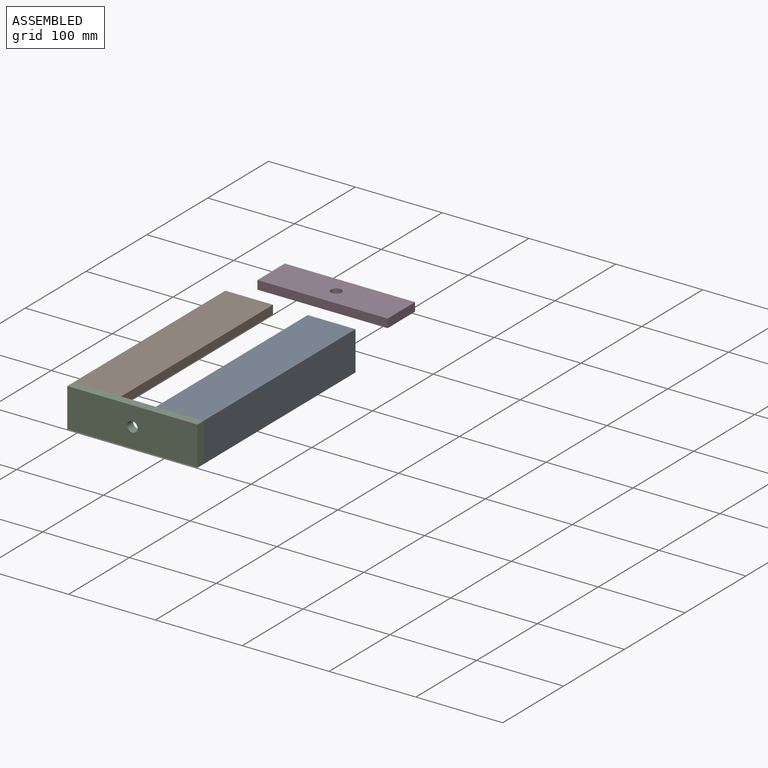
[diagram: assembled view]
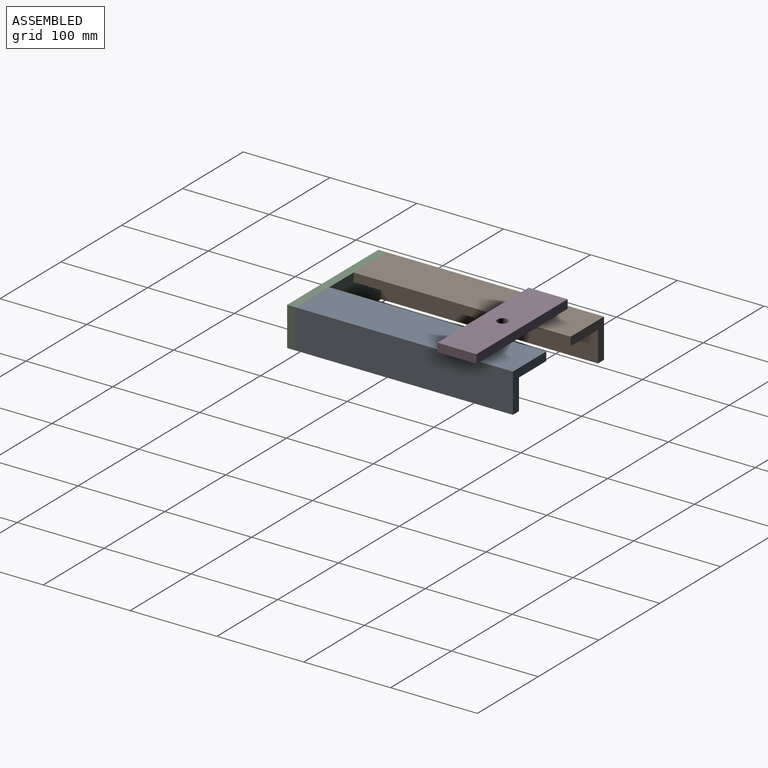
[diagram: assembled view, second angle]
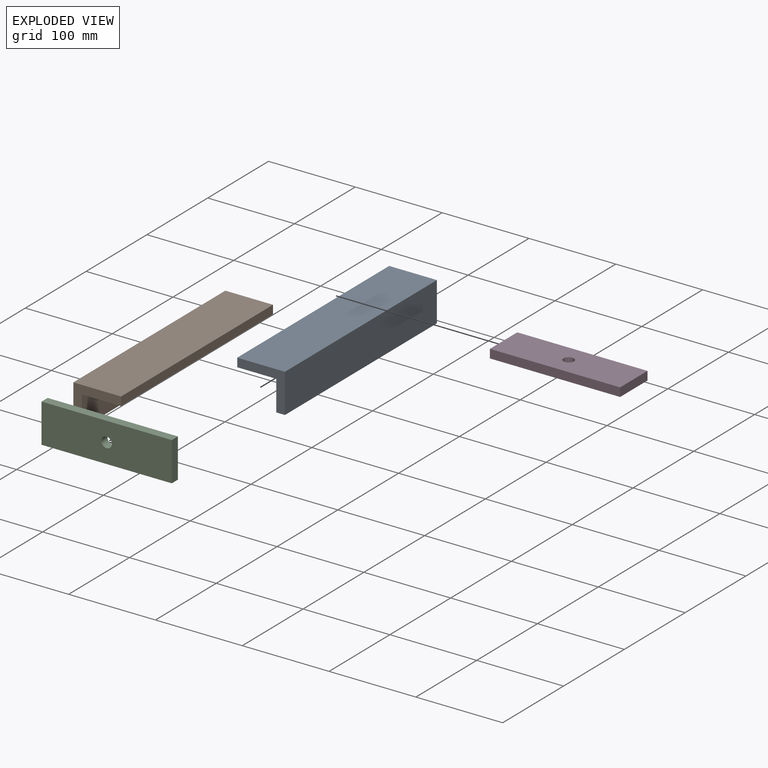
[diagram: exploded view]
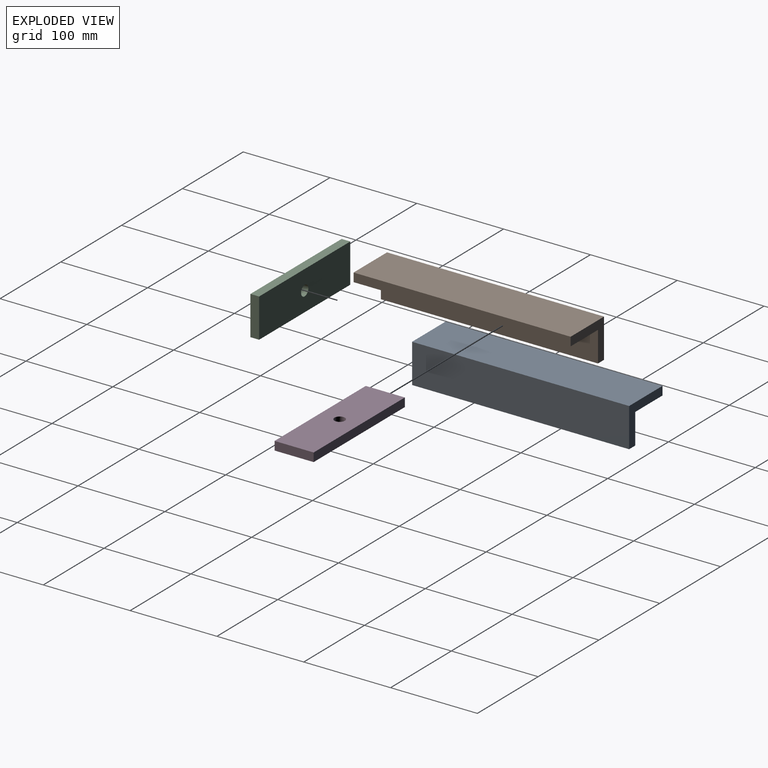
[diagram: exploded view, second angle]
ASSEMBLY  parts=4 mates=2
PART A: 8 faces, bbox 55x250x45 mm
  f0: plane 250x45mm, normal (-1,0,0), area 11250mm2, adj f1,f5,f6,f7
  f1: plane 250x10mm, normal (0,0,-1), area 2500mm2, adj f0,f2,f6,f7
  f2: plane 250x35mm, normal (1,0,0), area 8750mm2, adj f1,f3,f6,f7
  f3: plane 250x45mm, normal (0,0,-1), area 11250mm2, adj f2,f4,f6,f7
  f4: plane 250x10mm, normal (1,0,0), area 2500mm2, adj f3,f5,f6,f7
  f5: plane 250x55mm, normal (0,0,1), area 13750mm2, adj f0,f4,f6,f7
  f6: plane 55x45mm, normal (0,-1,0), area 900mm2, adj f0,f1,f2,f3,f4,f5
  f7: plane 55x45mm, normal (0,1,0), area 900mm2, adj f0,f1,f2,f3,f4,f5
PART B: same geometry as A
PART C: 7 faces, bbox 150x45x10 mm
  f0: plane 150x10mm, normal (0,1,0), area 1500mm2, adj f1,f3,f4,f5
  f1: plane 45x10mm, normal (-1,0,0), area 450mm2, adj f0,f2,f4,f5
  f2: plane 150x10mm, normal (0,-1,0), area 1500mm2, adj f1,f3,f4,f5
  f3: plane 45x10mm, normal (1,0,0), area 450mm2, adj f0,f2,f4,f5
  f4: plane 150x45mm, normal (0,0,1), area 6636.9mm2, adj f0,f1,f2,f3,f6
  f5: plane 150x45mm, normal (0,0,-1), area 6636.9mm2, adj f0,f1,f2,f3,f6
  f6: cylinder r=6mm len=12mm, axis (0,0,1), area 377mm2, adj f4,f5
PART D: same geometry as C
PLACE A rot(axis=(0,0,1),180deg) t=(44.17,-198.28,-54.58)mm
PLACE B t=(-105.83,51.72,-54.58)mm
PLACE C rot(axis=(0,0.71,0.71),180deg) t=(34.17,-208.28,-64.58)mm
PLACE D t=(-30.14,10.75,14.68)mm
MATE fastened A.f7 <-> C.f4  axis (0,-1,0) through (44.17,-198.28,-19.58)mm
MATE fastened C.f4 <-> B.f6  axis (0,1,0) through (-105.83,-198.28,-19.58)mm
